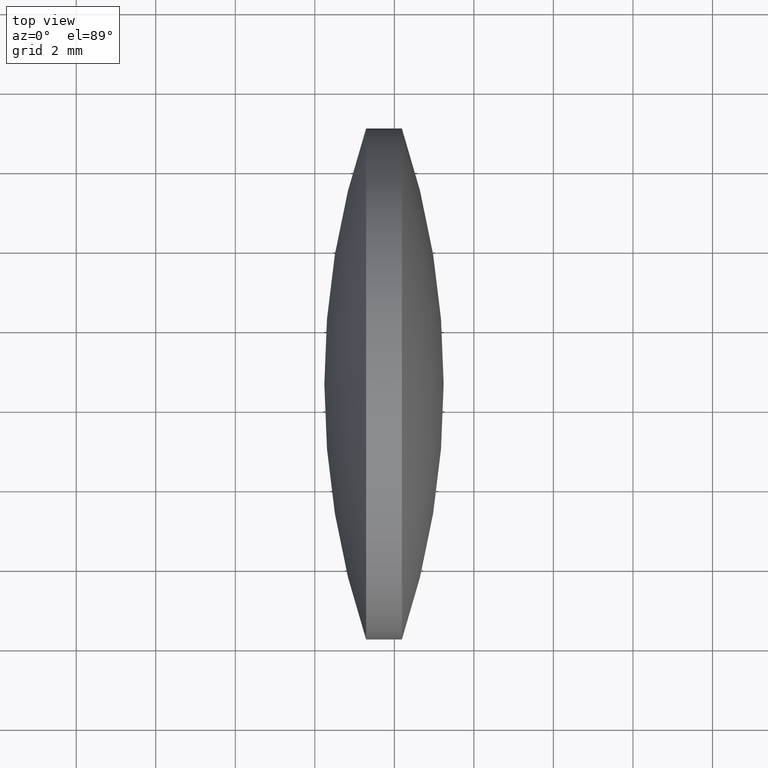
[diagram: clean part render]
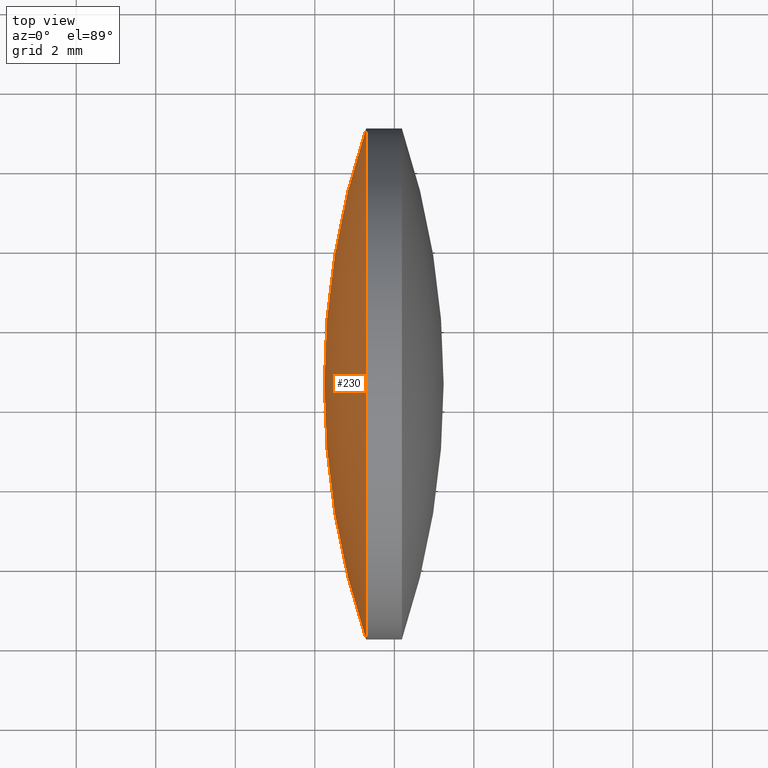
[diagram: same view with one face highlighted and labeled with its STEP entity id]
A machine part, top view. The second image highlights one B-rep face of the part: STEP entity #230.
In plain terms, the highlighted spherical surface has radius 20.1825 mm.
Its self-contained STEP definition (entity closure, byte-faithful):
#2 = DIRECTION ( 'NONE',  ( -2.336600556030481800E-031, 1.224646799147353200E-016, -1.000000000000000000 ) ) ;
#6 = EDGE_LOOP ( 'NONE', ( #202, #222, #225 ) ) ;
#27 = DIRECTION ( 'NONE',  ( 1.000000000000000000, 0.0000000000000000000, 0.0000000000000000000 ) ) ;
#29 = VERTEX_POINT ( 'NONE', #49 ) ;
#33 = EDGE_CURVE ( 'NONE', #37, #200, #206, .T. ) ;
#37 = VERTEX_POINT ( 'NONE', #120 ) ;
#39 = AXIS2_PLACEMENT_3D ( 'NONE', #266, #2, #305 ) ;
#49 = CARTESIAN_POINT ( 'NONE',  ( 42.23970917946287100, 24.59517828044028700, 0.0000000000000000000 ) ) ;
#65 = AXIS2_PLACEMENT_3D ( 'NONE', #166, #103, #124 ) ;
#68 = EDGE_CURVE ( 'NONE', #37, #29, #155, .T. ) ;
#103 = DIRECTION ( 'NONE',  ( -1.000000000000000000, -1.907979147667159300E-015, -0.0000000000000000000 ) ) ;
#120 = CARTESIAN_POINT ( 'NONE',  ( 43.28971009732074300, 18.17017338519846000, -7.868361679463981300E-016 ) ) ;
#124 = DIRECTION ( 'NONE',  ( 2.159965328289781400E-015, -1.000000000000000000, 0.0000000000000000000 ) ) ;
#155 = CIRCLE ( 'NONE', #39, 20.18245370577939500 ) ;
#159 = CIRCLE ( 'NONE', #179, 20.18245370577940200 ) ;
#161 = EDGE_CURVE ( 'NONE', #200, #29, #159, .T. ) ;
#166 = CARTESIAN_POINT ( 'NONE',  ( 43.28971009732072900, 24.59517828044031900, 0.0000000000000000000 ) ) ;
#179 = AXIS2_PLACEMENT_3D ( 'NONE', #186, #187, #27 ) ;
#186 = CARTESIAN_POINT ( 'NONE',  ( 62.42216288524226500, 24.59517828044032600, 0.0000000000000000000 ) ) ;
#187 = DIRECTION ( 'NONE',  ( -0.0000000000000000000, 0.0000000000000000000, 1.000000000000000000 ) ) ;
#191 = DIRECTION ( 'NONE',  ( -0.0000000000000000000, 0.0000000000000000000, -1.000000000000000000 ) ) ;
#200 = VERTEX_POINT ( 'NONE', #235 ) ;
#202 = ORIENTED_EDGE ( 'NONE', *, *, #68, .F. ) ;
#205 = FACE_OUTER_BOUND ( 'NONE', #6, .T. ) ;
#206 = CIRCLE ( 'NONE', #65, 6.425004895241823300 ) ;
#215 = DIRECTION ( 'NONE',  ( -2.062849444887929800E-015, 1.000000000000000000, 0.0000000000000000000 ) ) ;
#222 = ORIENTED_EDGE ( 'NONE', *, *, #33, .T. ) ;
#225 = ORIENTED_EDGE ( 'NONE', *, *, #161, .T. ) ;
#230 = ADVANCED_FACE ( 'NONE', ( #205 ), #253, .T. ) ;
#235 = CARTESIAN_POINT ( 'NONE',  ( 43.28971009732071500, 31.02018317568214900, 0.0000000000000000000 ) ) ;
#238 = CARTESIAN_POINT ( 'NONE',  ( 62.42216288524226500, 24.59517828044032600, 0.0000000000000000000 ) ) ;
#253 = SPHERICAL_SURFACE ( 'NONE', #265, 20.18245370577939500 ) ;
#265 = AXIS2_PLACEMENT_3D ( 'NONE', #238, #191, #215 ) ;
#266 = CARTESIAN_POINT ( 'NONE',  ( 62.42216288524226500, 24.59517828044032600, 0.0000000000000000000 ) ) ;
#305 = DIRECTION ( 'NONE',  ( 0.0000000000000000000, 1.000000000000000000, 1.224646799147353200E-016 ) ) ;